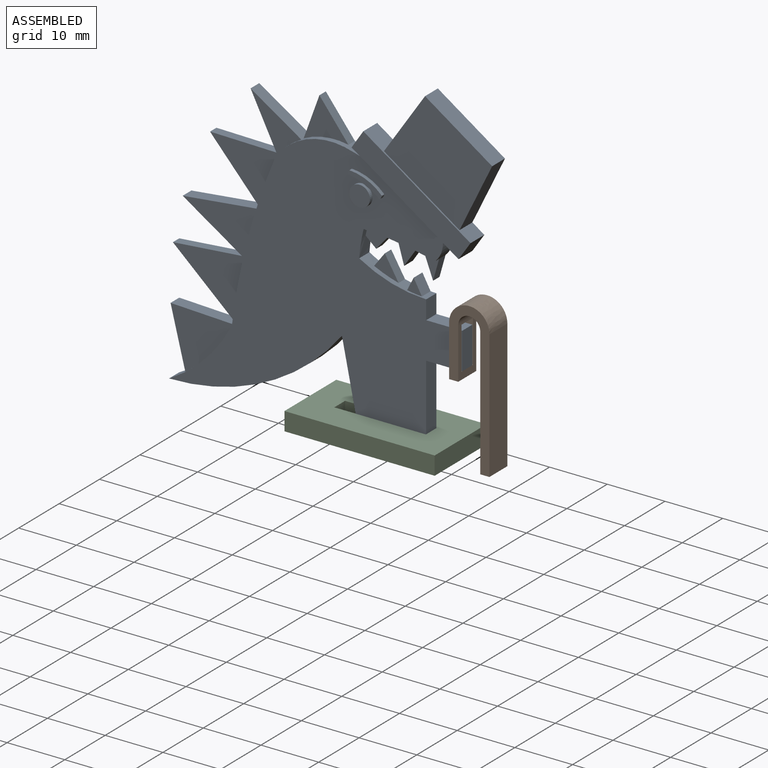
[diagram: assembled view]
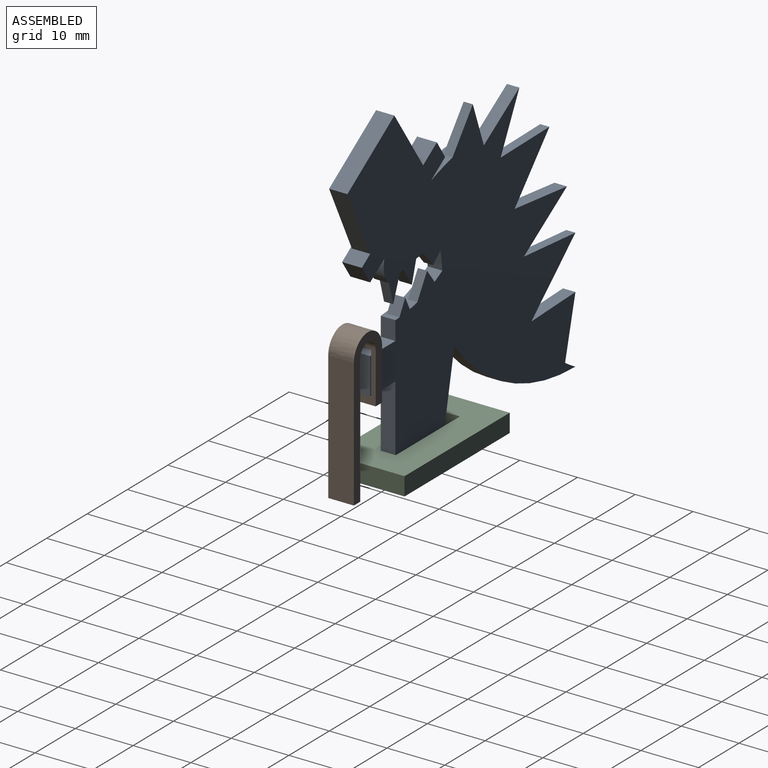
[diagram: assembled view, second angle]
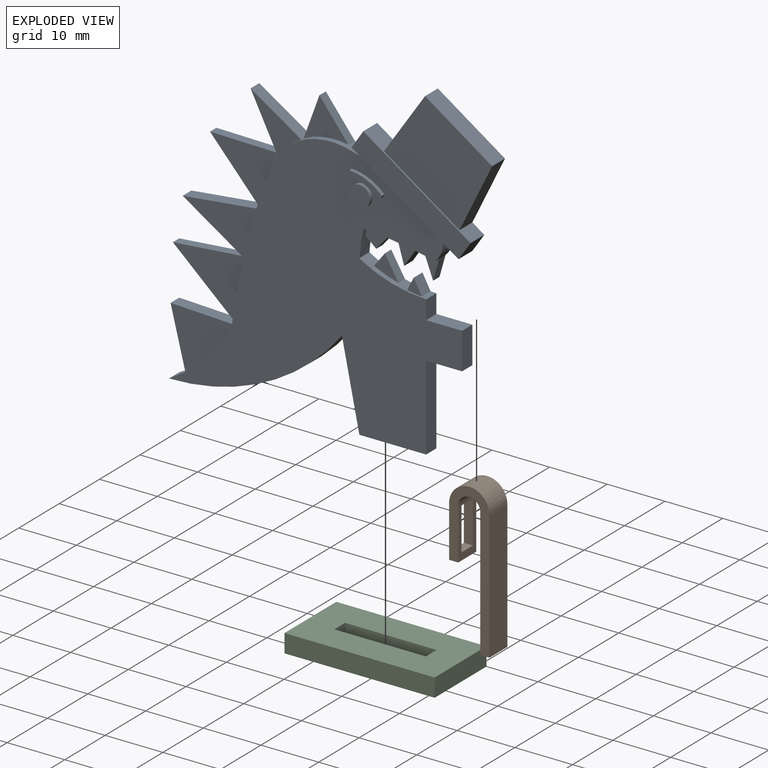
[diagram: exploded view]
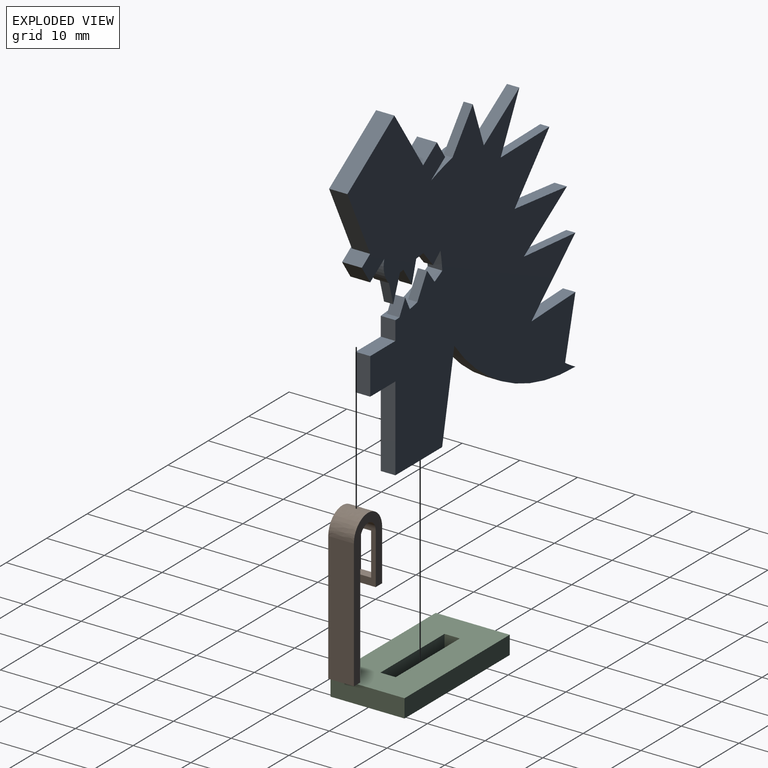
[diagram: exploded view, second angle]
ASSEMBLY  parts=3 mates=2
PART A: 67 faces, bbox 56.4x56.5x3.4 mm
  f0: cylinder r=11.93mm len=11.92mm, axis (0,0,-1), area 9.7mm2, adj f1,f15,f22,f40,f42,f51
  f1: cylinder r=105.11mm len=28.58mm, axis (0,0,-1), area 23.3mm2, adj f0,f16,f22,f35,f37,f38,f39,f41
  f2: plane 18.57x12.57mm, normal (0.56,0.83,0), area 26.7mm2, adj f4,f5,f6,f7,f23,f24,f26
  f3: plane 18.54x12.55mm, normal (-0.56,-0.83,0), area 41.4mm2, adj f4,f5,f6,f7,f14,f15,f22
  f4: plane 3.43x3.06mm, normal (0.83,-0.56,0), area 12.7mm2, adj f2,f3,f6,f7
  f5: plane 3.43x3.08mm, normal (-0.83,0.55,0), area 12.7mm2, adj f2,f3,f6,f7
  f6: plane 20.61x15.63mm, normal (0,0,1), area 82.8mm2, adj f2,f3,f4,f5
  f7: plane 56.45x56.45mm, normal (0,0,-1), area 1775.8mm2, adj f2,f3,f4,f5,f8,f9,f10,f11
  f8: plane 6.35x2.54mm, normal (1,0,0), area 16.1mm2, adj f7,f9,f21,f22
  f9: plane 6.23x2.54mm, normal (0,1,0), area 15.8mm2, adj f7,f8,f10,f22
  f10: plane 3.26x2.54mm, normal (1,0,0), area 8.3mm2, adj f7,f9,f11,f22
  f11: cylinder r=23.75mm len=11.61mm, axis (0,0,-1), area 18.3mm2, adj f7,f10,f12,f22,f58,f59,f60,f64
  f12: cylinder r=30.78mm len=4.8mm, axis (0,0,-1), area 10mm2, adj f7,f11,f13,f22,f56,f57
  f13: cylinder r=61.88mm len=12.42mm, axis (0,0,-1), area 14.3mm2, adj f7,f12,f14,f22,f53,f54,f55,f57
  f14: cylinder r=4.24mm len=4.26mm, axis (0,0,-1), area 11.8mm2, adj f3,f7,f13,f22,f52
  f15: cylinder r=38.75mm len=5.34mm, axis (0,0,-1), area 14.2mm2, adj f0,f3,f7,f22,f50
  f16: cylinder r=25.98mm len=11.23mm, axis (0,0,-1), area 12.5mm2, adj f1,f7,f17,f22,f34,f36
  f17: cylinder r=37.91mm len=29.97mm, axis (0,0,-1), area 87.8mm2, adj f7,f16,f18,f22
  f18: plane 14.7x3.02mm, normal (-0.98,-0.2,0), area 38.1mm2, adj f7,f17,f19,f22
  f19: plane 11.57x2.54mm, normal (0,-1,0), area 29.4mm2, adj f7,f18,f20,f22
  f20: plane 14.7x2.54mm, normal (1,0,0), area 37.3mm2, adj f7,f19,f21,f22
  f21: plane 6.23x2.54mm, normal (0,-1,0), area 15.8mm2, adj f7,f8,f20,f22
  f22: plane 50.8x44.62mm, normal (0,0,1), area 1172.5mm2, adj f0,f1,f3,f8,f9,f10,f11,f12
  f23: plane 10.51x7.12mm, normal (-0.83,0.56,0), area 40.3mm2, adj f2,f7,f25,f26
  f24: plane 11.51x5.65mm, normal (0.9,-0.44,0), area 40.7mm2, adj f2,f7,f25,f26
  f25: plane 11.63x7.87mm, normal (0.56,0.83,0), area 44.6mm2, adj f7,f23,f24,f26
  f26: plane 19.38x18.75mm, normal (0,0,1), area 189.6mm2, adj f2,f23,f24,f25
  f27: plane 5.94x3.17mm, normal (0,0,1), area 5.5mm2, adj f28,f29,f30,f31
  f28: cylinder r=0.72mm len=0.68mm, axis (0,0,-1), area 0.5mm2, adj f22,f27,f29,f31
  f29: cylinder r=8.5mm len=5.61mm, axis (0,0,-1), area 4mm2, adj f22,f27,f28,f30
  f30: cylinder r=0.84mm len=0.65mm, axis (0,0,-1), area 0.5mm2, adj f22,f27,f29,f31
  f31: cylinder r=11.5mm len=5.51mm, axis (0,0,-1), area 3.9mm2, adj f22,f27,f28,f30
  f32: plane 3.58x3.58mm, normal (0,0,1), area 10.1mm2, adj f33
  f33: cylinder r=1.79mm len=3.58mm, axis (0,0,-1), area 7.1mm2, adj f22,f32
  f34: plane 10.12x2.56mm, normal (-0.97,-0.25,0), area 22.5mm2, adj f7,f16,f35,f36
  f35: plane 10.9x2.16mm, normal (0.04,1,0), area 23.6mm2, adj f1,f7,f34,f36,f46
  f36: plane 10.9x10.12mm, normal (0,0,1), area 61.3mm2, adj f16,f34,f35
  f37: plane 12.95x2.16mm, normal (-0.11,0.99,0), area 28.1mm2, adj f1,f7,f38,f39,f44
  f38: plane 10.68x6.94mm, normal (-0.55,-0.84,0), area 27.5mm2, adj f1,f7,f37,f39,f47
  f39: plane 12.95x8.36mm, normal (0,0,1), area 52mm2, adj f1,f37,f38
  f40: plane 8.8x5.69mm, normal (0.54,0.84,0), area 22.6mm2, adj f0,f7,f41,f42,f49
  f41: plane 9.2x4.64mm, normal (-0.89,-0.45,0), area 22.2mm2, adj f1,f7,f40,f42,f43
  f42: plane 9.2x8.8mm, normal (0,0,1), area 26.2mm2, adj f0,f40,f41
  f43: plane 12.07x1.59mm, normal (0.02,1,0), area 19.2mm2, adj f7,f41,f44,f45
  f44: plane 9.57x8.61mm, normal (-0.74,-0.67,0), area 20.4mm2, adj f7,f37,f43,f45
  f45: plane 12.07x9.57mm, normal (0,0,1), area 56mm2, adj f1,f43,f44
  f46: plane 10.9x9.75mm, normal (-0.67,-0.75,0), area 23.2mm2, adj f7,f35,f47,f48
  f47: plane 12.78x1.59mm, normal (-0.09,1,0), area 20.4mm2, adj f7,f38,f46,f48
  f48: plane 12.78x10.86mm, normal (0,0,1), area 67.3mm2, adj f1,f46,f47
  f49: plane 7.47x2.73mm, normal (-0.94,0.34,0), area 12.6mm2, adj f7,f40,f50,f51
  f50: plane 6.42x5.03mm, normal (0.79,0.62,0), area 12.9mm2, adj f7,f15,f49,f51
  f51: plane 7.76x7.47mm, normal (0,0,1), area 24.1mm2, adj f0,f49,f50
  f52: plane 3.7x1.59mm, normal (0.96,-0.27,0), area 6.1mm2, adj f7,f14,f53,f54
  f53: plane 4.3x1.65mm, normal (-0.93,-0.36,0), area 7.3mm2, adj f7,f13,f52,f54
  f54: plane 4.3x2.69mm, normal (0,0,1), area 5.3mm2, adj f13,f52,f53
  f55: plane 2.79x2.4mm, normal (0.76,-0.65,0), area 5.8mm2, adj f7,f13,f56,f57
  f56: plane 1.84x1.59mm, normal (-0.65,-0.76,0), area 3.9mm2, adj f7,f12,f55,f57
  f57: plane 4.24x3.06mm, normal (0,0,1), area 7.5mm2, adj f12,f13,f55,f56
  f58: plane 2.45x1.86mm, normal (-0.8,0.6,0), area 4.9mm2, adj f7,f11,f59,f60
  f59: plane 4x2.38mm, normal (0.86,0.51,0), area 7.4mm2, adj f7,f11,f58,f60
  f60: plane 4.25x4mm, normal (0,0,1), area 7mm2, adj f11,f58,f59
  f61: plane 3.16x2.16mm, normal (0.83,-0.56,0), area 8.2mm2, adj f7,f13,f62,f63
  f62: plane 3.65x2.16mm, normal (-0.96,-0.28,0), area 8.2mm2, adj f7,f13,f61,f63
  f63: plane 3.65x3.19mm, normal (0,0,1), area 5.6mm2, adj f13,f61,f62
  f64: plane 2.26x2.16mm, normal (-0.89,0.45,0), area 5.5mm2, adj f7,f11,f65,f66
  f65: plane 2.56x2.16mm, normal (0.88,0.48,0), area 6.3mm2, adj f7,f11,f64,f66
  f66: plane 2.56x2.56mm, normal (0,0,1), area 3.1mm2, adj f11,f64,f65
PART B: 14 faces, bbox 7x26.9x4.4 mm
  f0: plane 8.89x4.45mm, normal (1,0,0), area 18.5mm2, adj f1,f4,f5,f9,f10,f11,f12,f13
  f1: plane 2.86x1.59mm, normal (0,1,0), area 4.5mm2, adj f0,f3,f11,f12
  f2: extruded ~6.99x4.45mm, area 48.8mm2, adj f3,f8,f9,f10
  f3: plane 8.89x4.45mm, normal (-1,0,0), area 18.5mm2, adj f1,f2,f4,f9,f10,f11,f12,f13
  f4: plane 4.45x1.59mm, normal (0,-1,0), area 7.1mm2, adj f0,f3,f9,f10
  f5: cylinder r=1.91mm len=4.45mm, axis (0,0,-1), area 26.6mm2, adj f0,f6,f9,f10
  f6: plane 22.34x4.45mm, normal (-1,0,0), area 99.3mm2, adj f5,f7,f9,f10
  f7: plane 4.45x1.59mm, normal (0,-1,0), area 7.1mm2, adj f6,f8,f9,f10
  f8: plane 22.34x4.45mm, normal (1,0,0), area 99.3mm2, adj f2,f7,f9,f10
  f9: plane 26.89x7.01mm, normal (0,0,1), area 63mm2, adj f0,f2,f3,f4,f5,f6,f7,f8
  f10: plane 26.89x7.01mm, normal (0,0,-1), area 63mm2, adj f0,f2,f3,f4,f5,f6,f7,f8
  f11: plane 7.37x1.59mm, normal (0,0,-1), area 11.7mm2, adj f0,f1,f3,f13
  f12: plane 7.37x1.59mm, normal (0,0,1), area 11.7mm2, adj f0,f1,f3,f13
  f13: plane 2.86x1.59mm, normal (0,-1,0), area 4.5mm2, adj f0,f3,f11,f12
PART C: 10 faces, bbox 26x12.8x3.2 mm
  f0: plane 12.83x3.18mm, normal (-1,0,0), area 40.7mm2, adj f1,f7,f8,f9
  f1: plane 26.04x3.18mm, normal (0,-1,0), area 82.7mm2, adj f0,f2,f8,f9
  f2: plane 12.83x3.18mm, normal (1,0,0), area 40.7mm2, adj f1,f7,f8,f9
  f3: plane 3.18x2.67mm, normal (1,0,0), area 8.5mm2, adj f4,f6,f8,f9
  f4: plane 15.88x3.18mm, normal (0,-1,0), area 50.4mm2, adj f3,f5,f8,f9
  f5: plane 3.18x2.67mm, normal (-1,0,0), area 8.5mm2, adj f4,f6,f8,f9
  f6: plane 15.88x3.18mm, normal (0,1,0), area 50.4mm2, adj f3,f5,f8,f9
  f7: plane 26.04x3.18mm, normal (0,1,0), area 82.7mm2, adj f0,f2,f8,f9
  f8: plane 26.04x12.83mm, normal (0,0,1), area 291.6mm2, adj f0,f1,f2,f3,f4,f5,f6,f7
  f9: plane 26.04x12.83mm, normal (0,0,-1), area 291.6mm2, adj f0,f1,f2,f3,f4,f5,f6,f7
PLACE A rot(axis=(1,0,0),90deg) t=(-31.66,-17.29,11.97)mm
PLACE B rot(axis=(1,0,0),90deg) t=(-8.93,-16.34,22.68)mm
PLACE C t=(-20.43,-18.56,-13.43)mm
MATE fastened B.f1 <-> A.f21  axis (0,0,1) through (-6.26,-18.56,1.27)mm
MATE fastened A.f19 <-> C.f9  axis (0,0,-1) through (-12.49,-18.56,-13.43)mm
